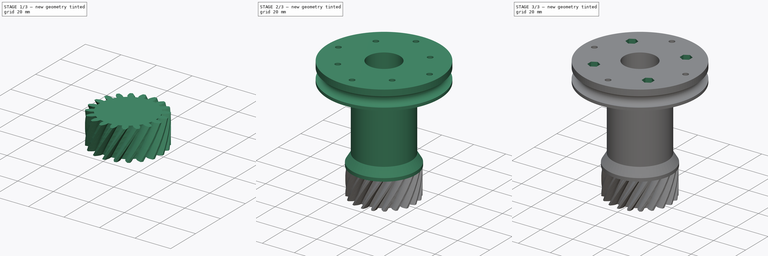
[diagram: build sequence overview — one tinted view per stage of 3, left to right]
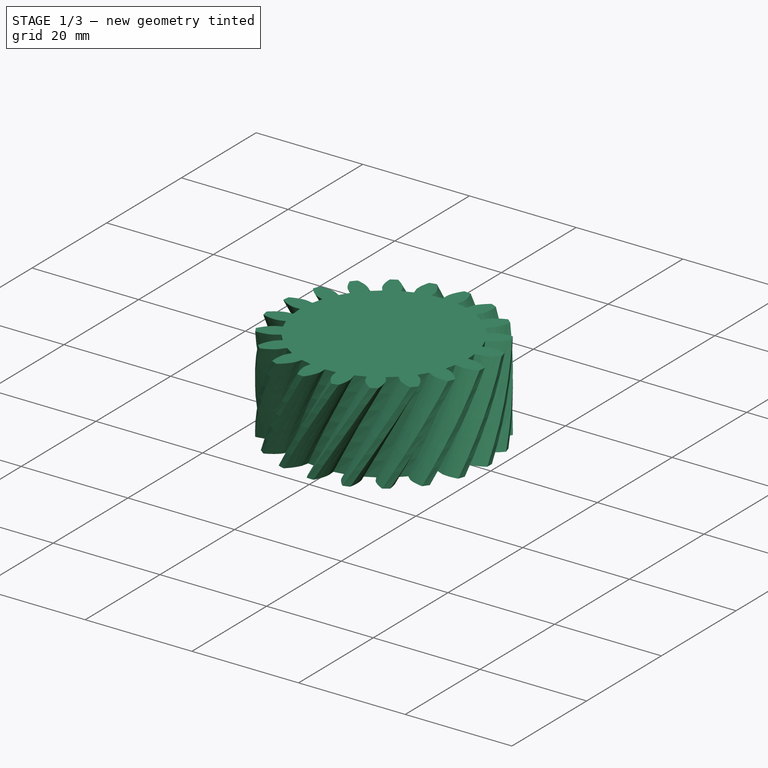
[diagram: stage 1 of 3 — iso view after this stage's code; geometry added in this stage tinted green]
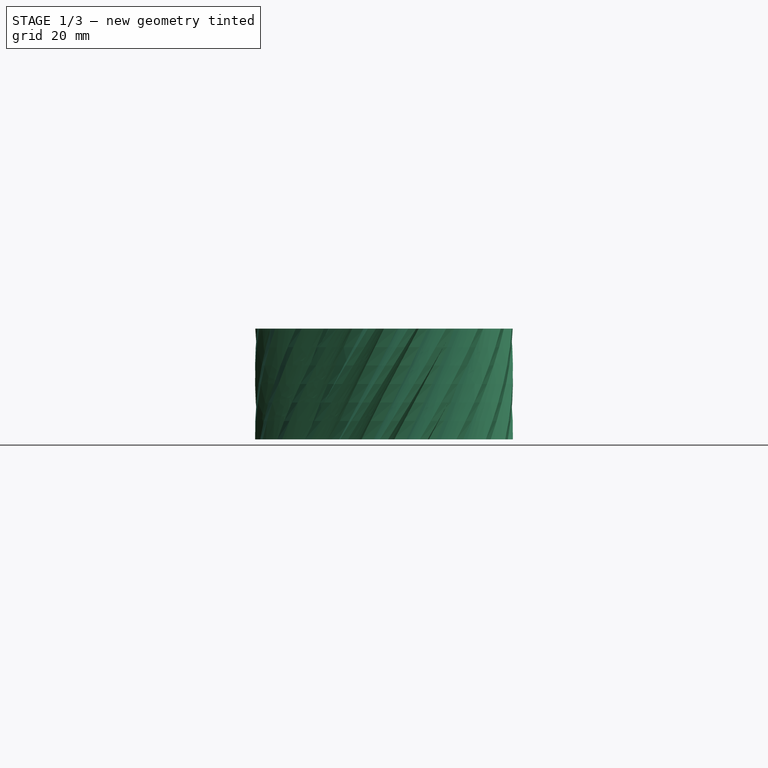
[diagram: stage 1 of 3 — front view after this stage's code; geometry added in this stage tinted green]
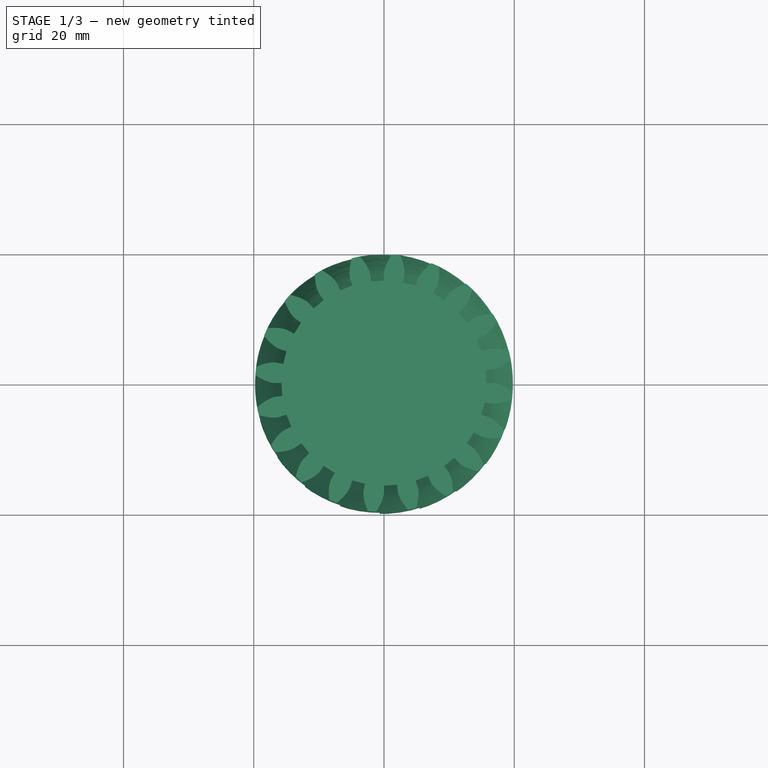
[diagram: stage 1 of 3 — top view after this stage's code; geometry added in this stage tinted green]
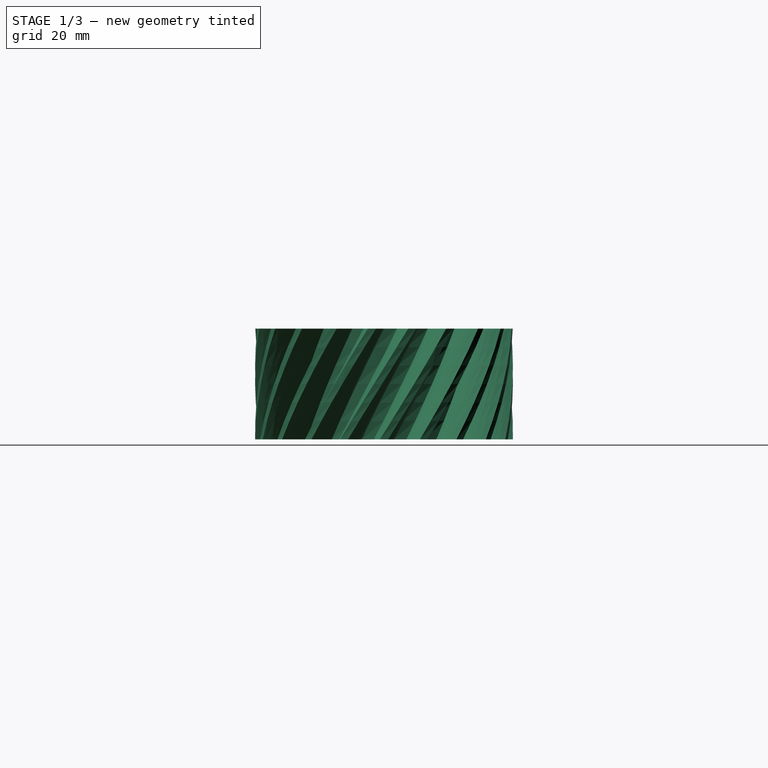
[diagram: stage 1 of 3 — right view after this stage's code; geometry added in this stage tinted green]
FCSTD DOCUMENT  (FreeCAD 0.19R24276 (Git))
Label: Art4TransmissionColumn
License: All rights reserved
LicenseURL: http://en.wikipedia.org/wiki/All_rights_reserved
objects: PartDesign::Line×8, Sketcher::SketchObject×5, PartDesign::Pocket×4, PartDesign::CoordinateSystem×3, Part::FeaturePython×1, PartDesign::FeatureBase×1, Spreadsheet::Sheet×1, PartDesign::Revolution×1, PartDesign::Body×1
note: 29 computed .brp shape members not serialized (recipe doc carries the construction recipe); baked Part::Feature solids carry a one-line shape summary decoded from their .brp

FEATURE [Part::FeaturePython] involutegear  # WARN: FeaturePython — macro-defined, semantics opaque (R4)
  backlash = 0
  beta = 29.5
  clearance = 0.25
  double_helix = false
  dw = 36
  head = 0
  height = 17
  module = 1.8
  numpoints = 6
  pressure_angle = 20
  properties_from_tool = false
  reversed_backlash = false
  shift = 0
  simple = false
  teeth = 20
  transverse_pitch = 5.65487
  undercut = false
  version = 0.0.3
FEATURE [PartDesign::FeatureBase] BaseFeature
  BaseFeature = -> involutegear
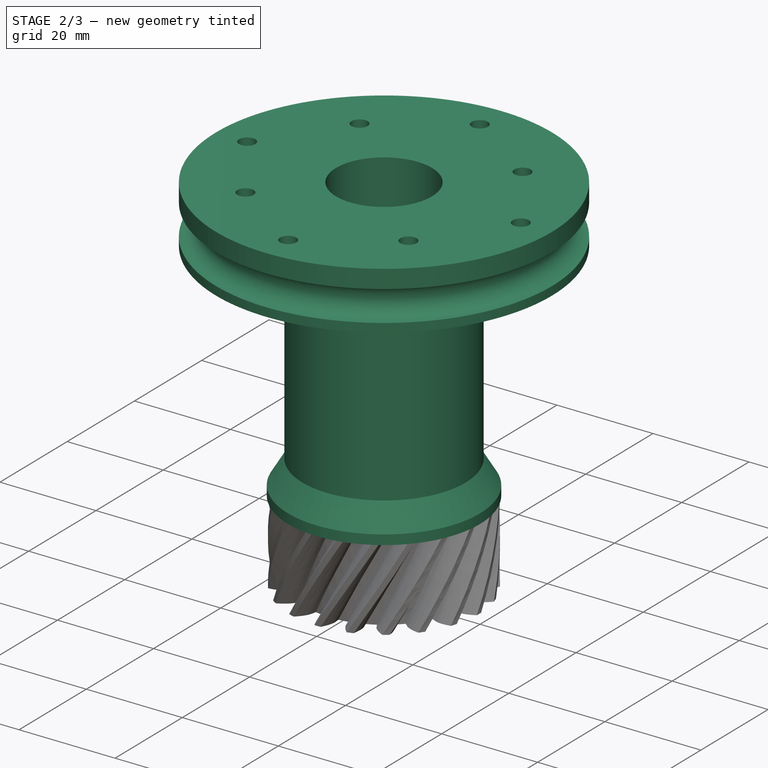
[diagram: stage 2 of 3 — iso view after this stage's code; geometry added in this stage tinted green]
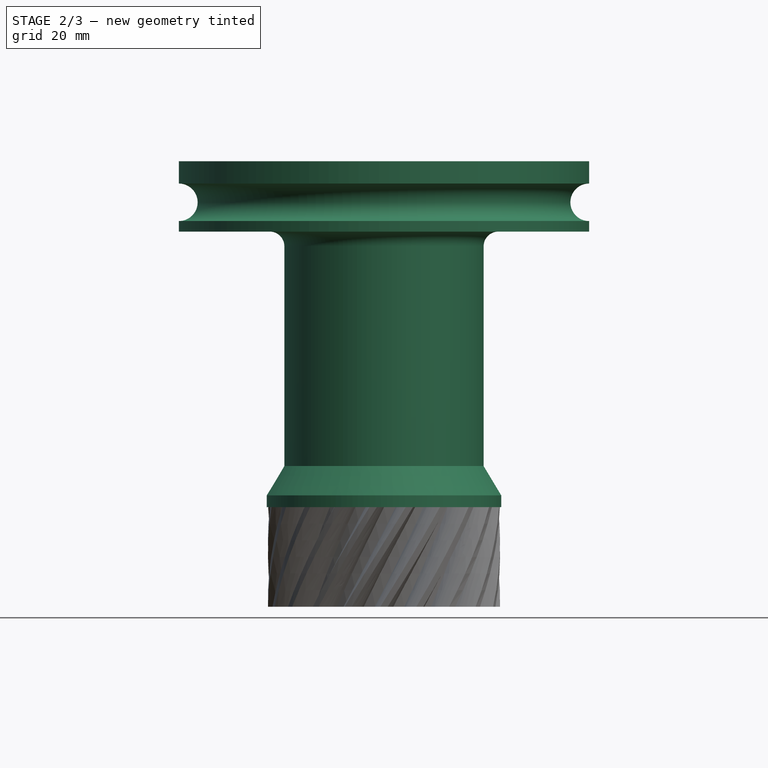
[diagram: stage 2 of 3 — front view after this stage's code; geometry added in this stage tinted green]
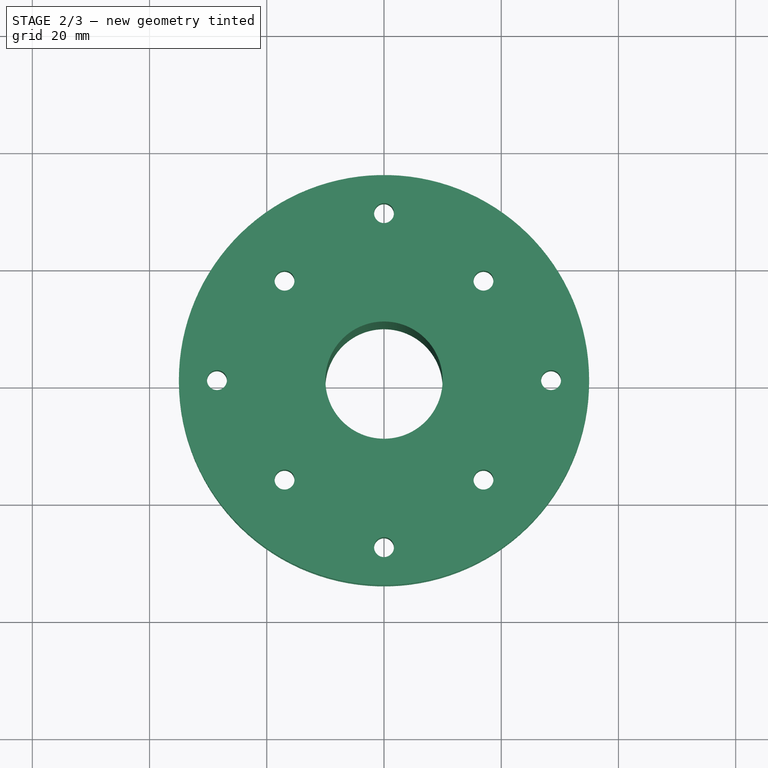
[diagram: stage 2 of 3 — top view after this stage's code; geometry added in this stage tinted green]
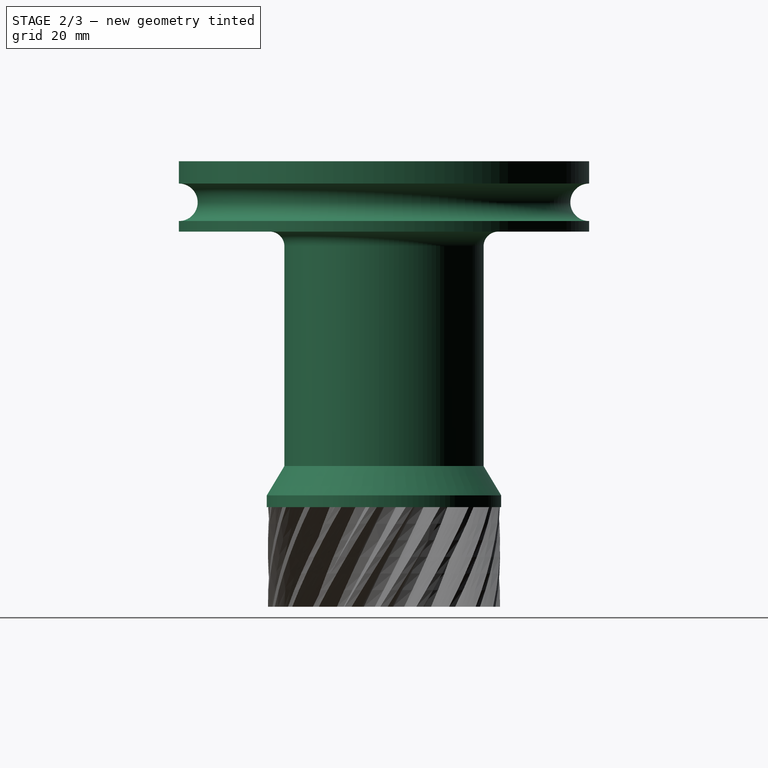
[diagram: stage 2 of 3 — right view after this stage's code; geometry added in this stage tinted green]
FEATURE [Sketcher::SketchObject] Sketch
  FullyConstrained = true
  MapMode = 5
  Placement = pos=(0,0,0) rot=(1,0,0;1.5708rad)
  Support = -> [XZ_Plane]
  expr: Constraints[29] = Spreadsheet.Ball6mmRadius
  sketch-geometry (11):
    g0: LineSegment StartX=0 StartY=17 StartZ=0 EndX=20 EndY=17 EndZ=0
    g1: LineSegment StartX=20 StartY=17 StartZ=0 EndX=20 EndY=19 EndZ=0
    g2: LineSegment StartX=20 StartY=19 StartZ=0 EndX=17 EndY=24 EndZ=0
    g3: LineSegment StartX=17 StartY=24 StartZ=0 EndX=17 EndY=61.5 EndZ=0
    g4: LineSegment StartX=0 StartY=17 StartZ=0 EndX=0 EndY=76 EndZ=0
    g5: LineSegment StartX=0 StartY=76 StartZ=0 EndX=35 EndY=76 EndZ=0
    g6: LineSegment StartX=35 StartY=76 StartZ=0 EndX=35 EndY=72.2 EndZ=0
    g7: ArcOfCircle CenterX=35 CenterY=69 CenterZ=0 NormalX=0 NormalY=0 NormalZ=1 AngleXU=0 Radius=3.2 StartAngle=1.5708 EndAngle=4.71239
    g8: LineSegment StartX=35 StartY=65.8 StartZ=0 EndX=35 EndY=64 EndZ=0
    g9: LineSegment StartX=35 StartY=64 StartZ=0 EndX=19.5 EndY=64 EndZ=0
    g10: ArcOfCircle CenterX=19.5 CenterY=61.5 CenterZ=0 NormalX=0 NormalY=0 NormalZ=1 AngleXU=0 Radius=2.5 StartAngle=1.5708 EndAngle=3.14159
  constraints (33):
    c: PointOnObject(g0,g-2)
    c: Horizontal(g0)
    c: Coincident(g0,g1)
    c: Vertical(g1)
    c: Coincident(g1,g2)
    c: Coincident(g2,g3)
    c: Vertical(g3)
    c: Coincident(g0,g4)
    c: PointOnObject(g4,g-2)
    c: Coincident(g4,g5)
    c: Horizontal(g5)
    c: Coincident(g5,g6)
    c: Vertical(g6)
    c: Coincident(g7,g6)
    c: Coincident(g8,g7)
    c: Vertical(g8)
    c: Coincident(g9,g8)
    c: Horizontal(g9)
    c: Tangent(g10,g3) = 1.5708
    c: Tangent(g10,g9) = -1.5708
    c: PointOnObject(g7,g8)
    c: PointOnObject(g7,g6)
    c: DistanceX(g0,g0) = 20
    c: DistanceY(g1,g1) = 2
    c: DistanceY(g2,g2) = 5
    c: DistanceY(g4,g4) = 59
    c: DistanceX(g5,g5) = 35
    c: DistanceY(g8,g5) = 12
    c: DistanceY(g8,g7) = 5
    c: Radius(g7) = 3.2
    c: DistanceY(g3,g3) = 37.5
    c: DistanceX(g0,g2) = 17
    c: DistanceY(g-1,g0) = 17
FEATURE [Spreadsheet::Sheet] Spreadsheet
  cells = A2=M3BoltBodyRadius; B2(M3BoltBodyRadius)=1.7; A3=M3BoltHeadRadius; B3(M3BoltHeadRadius)=2.95; A4=M3NutCircumradius; B4(M3NutCircumradius)=3.35; A5=M3NutThickness; B5(M3NutThickness)=3; A6=Bearing655ZZBodyRadius; B6(Bearing655ZZBodyRadius)=8.199999999999999; A7=Ball6mmRadius; B7(Ball6mmRadius)=3.2
FEATURE [PartDesign::Revolution] Revolution
  Angle = 360
  Axis = (0,2e-16,1)
  Base = (0,0,0)
  BaseFeature = -> BaseFeature
  Profile = -> Sketch
  ReferenceAxis = -> Sketch [V_Axis]
  Refine = true
  Reversed = true
FEATURE [Sketcher::SketchObject] Sketch001
  FullyConstrained = true
  MapMode = 5
  Placement = pos=(0,1.67e-14,76) rot=(0,0,1;0rad)
  Support = -> [Revolution]
  sketch-geometry (1):
    g0: Circle CenterX=0 CenterY=0 CenterZ=0 NormalX=0 NormalY=0 NormalZ=1 AngleXU=0 Radius=10
  constraints (2):
    c: Coincident(g0,g-1)
    c: Radius(g0) = 10
FEATURE [PartDesign::Pocket] Pocket
  BaseFeature = -> Revolution
  Length = 5
  Length2 = 100
  Profile = -> Sketch001
  Refine = true
  Type = 1
FEATURE [Sketcher::SketchObject] Sketch002
  FullyConstrained = true
  MapMode = 5
  Placement = pos=(0,1.67e-14,76) rot=(0,0,1;0rad)
  Support = -> [Pocket]
  expr: Constraints[8] = Spreadsheet.M3BoltBodyRadius
  sketch-geometry (14):
    g0: Circle CenterX=0 CenterY=0 CenterZ=0 NormalX=0 NormalY=0 NormalZ=1 AngleXU=0 Radius=28.5
    g1: Circle CenterX=0 CenterY=28.5 CenterZ=0 NormalX=0 NormalY=0 NormalZ=1 AngleXU=0 Radius=1.7
    g2: Circle CenterX=28.5 CenterY=0 CenterZ=0 NormalX=0 NormalY=0 NormalZ=1 AngleXU=0 Radius=1.7
    g3: Circle CenterX=0 CenterY=-28.5 CenterZ=0 NormalX=0 NormalY=0 NormalZ=1 AngleXU=0 Radius=1.7
    g4: Circle CenterX=-28.5 CenterY=0 CenterZ=0 NormalX=0 NormalY=0 NormalZ=1 AngleXU=0 Radius=1.7
    g5: Circle CenterX=-16.9706 CenterY=16.9706 CenterZ=0 NormalX=0 NormalY=0 NormalZ=1 AngleXU=0 Radius=1.7
    g6: Circle CenterX=16.9706 CenterY=16.9706 CenterZ=0 NormalX=0 NormalY=0 NormalZ=1 AngleXU=0 Radius=1.7
    g7: Circle CenterX=16.9706 CenterY=-16.9706 CenterZ=0 NormalX=0 NormalY=0 NormalZ=1 AngleXU=0 Radius=1.7
    g8: Circle CenterX=-16.9706 CenterY=-16.9706 CenterZ=0 NormalX=0 NormalY=0 NormalZ=1 AngleXU=0 Radius=1.7
    g9: LineSegment StartX=-16.9706 StartY=16.9706 StartZ=0 EndX=16.9706 EndY=16.9706 EndZ=0
    g10: LineSegment StartX=16.9706 StartY=16.9706 StartZ=0 EndX=16.9706 EndY=-16.9706 EndZ=0
    g11: LineSegment StartX=16.9706 StartY=-16.9706 StartZ=0 EndX=-16.9706 EndY=-16.9706 EndZ=0
    g12: LineSegment StartX=-16.9706 StartY=-16.9706 StartZ=0 EndX=-16.9706 EndY=16.9706 EndZ=0
    g13: Circle CenterX=0 CenterY=0 CenterZ=0 NormalX=0 NormalY=0 NormalZ=1 AngleXU=0 Radius=24
  constraints (36):
    c: Coincident(g0,g-1)
    c: PointOnObject(g1,g-2)
    c: PointOnObject(g2,g-1)
    c: PointOnObject(g3,g-2)
    c: PointOnObject(g4,g-1)
    c: Equal(g4,g1)
    c: Equal(g1,g2)
    c: Equal(g2,g3)
    c: Radius(g3) = 1.7
    c: PointOnObject(g4,g0)
    c: PointOnObject(g1,g0)
    c: PointOnObject(g3,g0)
    c: PointOnObject(g2,g0)
    c: Radius(g0) = 28.5
    c: Equal(g8,g5)
    c: Equal(g5,g6)
    c: Equal(g6,g7)
    c: Equal(g7,g1)
    c: Coincident(g9,g10)
    c: Coincident(g10,g11)
    c: Coincident(g11,g12)
    c: Coincident(g12,g9)
    c: Horizontal(g9)
    c: Horizontal(g11)
    c: Vertical(g10)
    c: Vertical(g12)
    c: Coincident(g9,g5)
    c: Coincident(g10,g7)
    c: Coincident(g8,g11)
    c: Coincident(g9,g6)
    c: Equal(g10,g9)
    c: Coincident(g13,g-1)
    c: PointOnObject(g5,g13)
    c: Radius(g13) = 24
    c: PointOnObject(g7,g13)
    c: PointOnObject(g8,g13)
FEATURE [PartDesign::Pocket] Pocket001
  BaseFeature = -> Pocket
  Length = 5
  Length2 = 100
  Profile = -> Sketch002
  Refine = true
  Type = 1
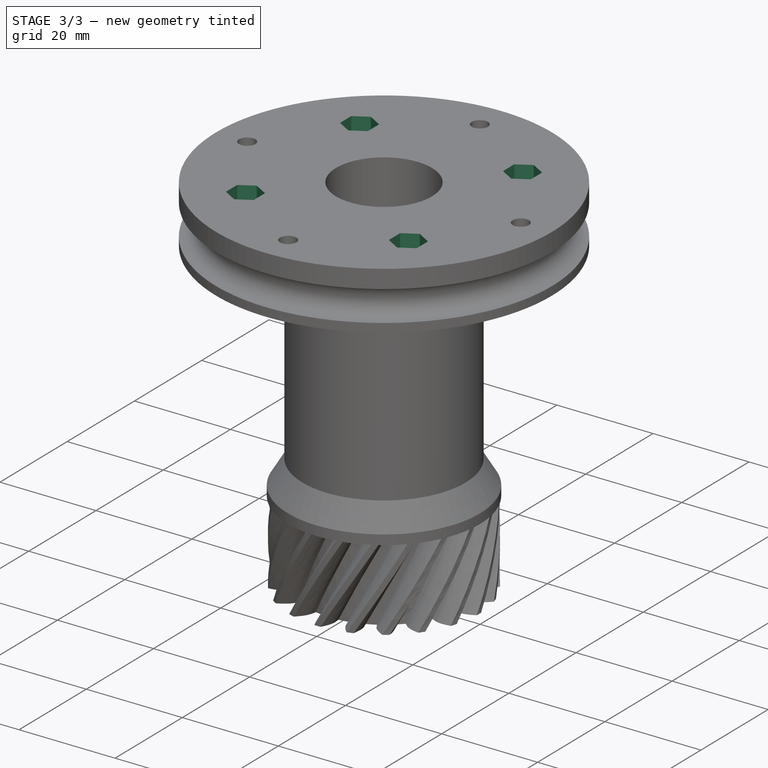
[diagram: stage 3 of 3 — iso view after this stage's code; geometry added in this stage tinted green]
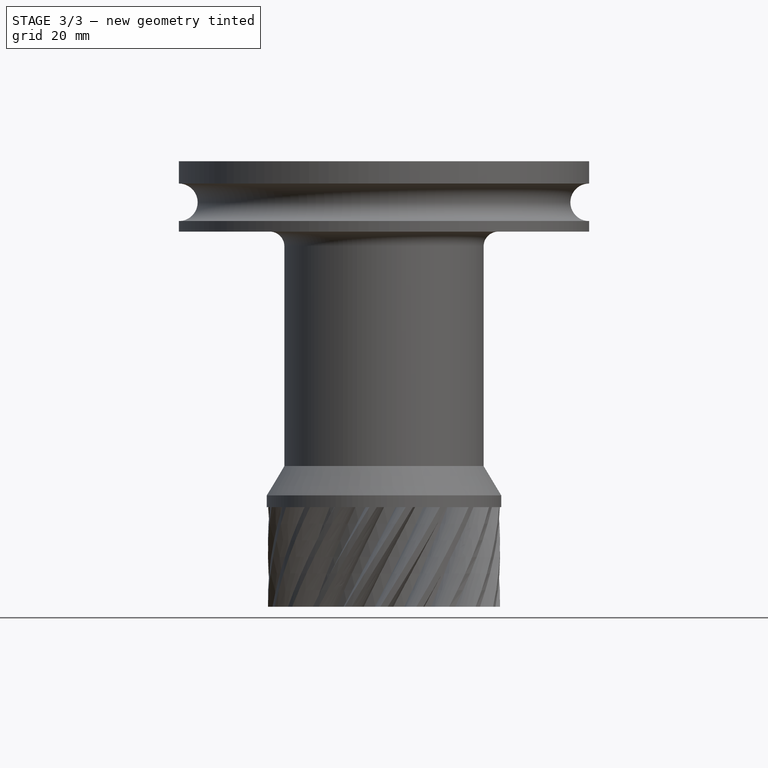
[diagram: stage 3 of 3 — front view after this stage's code; geometry added in this stage tinted green]
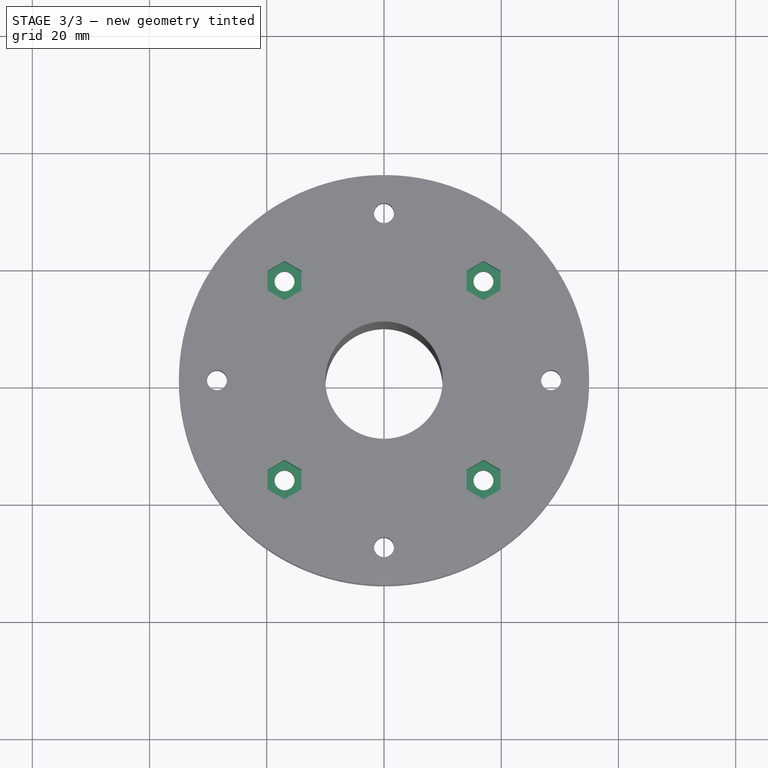
[diagram: stage 3 of 3 — top view after this stage's code; geometry added in this stage tinted green]
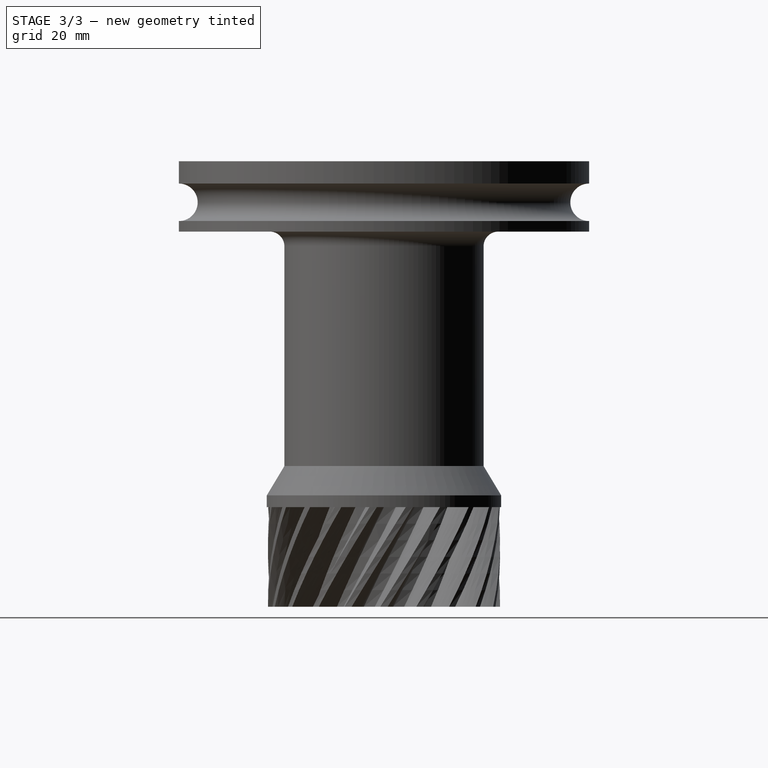
[diagram: stage 3 of 3 — right view after this stage's code; geometry added in this stage tinted green]
FEATURE [Sketcher::SketchObject] Sketch003
  ExternalGeometry = -> [Pocket001]
  FullyConstrained = true
  MapMode = 5
  Placement = pos=(0,1.67e-14,76) rot=(0,0,1;0rad)
  Support = -> [Pocket001]
  expr: Constraints[79] = Spreadsheet.M3NutCircumradius
  sketch-geometry (28):
    g0: LineSegment StartX=16.9706 StartY=13.6206 StartZ=0 EndX=19.8717 EndY=15.2956 EndZ=0
    g1: LineSegment StartX=19.8717 StartY=15.2956 StartZ=0 EndX=19.8717 EndY=18.6456 EndZ=0
    g2: LineSegment StartX=19.8717 StartY=18.6456 StartZ=0 EndX=16.9706 EndY=20.3206 EndZ=0
    g3: LineSegment StartX=16.9706 StartY=20.3206 StartZ=0 EndX=14.0694 EndY=18.6456 EndZ=0
    g4: LineSegment StartX=14.0694 StartY=18.6456 StartZ=0 EndX=14.0694 EndY=15.2956 EndZ=0
    g5: LineSegment StartX=14.0694 StartY=15.2956 StartZ=0 EndX=16.9706 EndY=13.6206 EndZ=0
    g6: Circle CenterX=16.9706 CenterY=16.9706 CenterZ=0 NormalX=0 NormalY=0 NormalZ=1 AngleXU=0 Radius=3.35
    g7: LineSegment StartX=16.9706 StartY=-20.3206 StartZ=0 EndX=19.8717 EndY=-18.6456 EndZ=0
    g8: LineSegment StartX=19.8717 StartY=-18.6456 StartZ=0 EndX=19.8717 EndY=-15.2956 EndZ=0
    g9: LineSegment StartX=19.8717 StartY=-15.2956 StartZ=0 EndX=16.9706 EndY=-13.6206 EndZ=0
    g10: LineSegment StartX=16.9706 StartY=-13.6206 StartZ=0 EndX=14.0694 EndY=-15.2956 EndZ=0
    g11: LineSegment StartX=14.0694 StartY=-15.2956 StartZ=0 EndX=14.0694 EndY=-18.6456 EndZ=0
    g12: LineSegment StartX=14.0694 StartY=-18.6456 StartZ=0 EndX=16.9706 EndY=-20.3206 EndZ=0
    g13: Circle CenterX=16.9706 CenterY=-16.9706 CenterZ=0 NormalX=0 NormalY=0 NormalZ=1 AngleXU=0 Radius=3.35
    g14: LineSegment StartX=-16.9706 StartY=-20.3206 StartZ=0 EndX=-14.0694 EndY=-18.6456 EndZ=0
    g15: LineSegment StartX=-14.0694 StartY=-18.6456 StartZ=0 EndX=-14.0694 EndY=-15.2956 EndZ=0
    g16: LineSegment StartX=-14.0694 StartY=-15.2956 StartZ=0 EndX=-16.9706 EndY=-13.6206 EndZ=0
    g17: LineSegment StartX=-16.9706 StartY=-13.6206 StartZ=0 EndX=-19.8717 EndY=-15.2956 EndZ=0
    g18: LineSegment StartX=-19.8717 StartY=-15.2956 StartZ=0 EndX=-19.8717 EndY=-18.6456 EndZ=0
    g19: LineSegment StartX=-19.8717 StartY=-18.6456 StartZ=0 EndX=-16.9706 EndY=-20.3206 EndZ=0
    g20: Circle CenterX=-16.9706 CenterY=-16.9706 CenterZ=0 NormalX=0 NormalY=0 NormalZ=1 AngleXU=0 Radius=3.35
    g21: LineSegment StartX=-16.9706 StartY=13.6206 StartZ=0 EndX=-14.0694 EndY=15.2956 EndZ=0
    g22: LineSegment StartX=-14.0694 StartY=15.2956 StartZ=0 EndX=-14.0694 EndY=18.6456 EndZ=0
    g23: LineSegment StartX=-14.0694 StartY=18.6456 StartZ=0 EndX=-16.9706 EndY=20.3206 EndZ=0
    g24: LineSegment StartX=-16.9706 StartY=20.3206 StartZ=0 EndX=-19.8717 EndY=18.6456 EndZ=0
    g25: LineSegment StartX=-19.8717 StartY=18.6456 StartZ=0 EndX=-19.8717 EndY=15.2956 EndZ=0
    g26: LineSegment StartX=-19.8717 StartY=15.2956 StartZ=0 EndX=-16.9706 EndY=13.6206 EndZ=0
    g27: Circle CenterX=-16.9706 CenterY=16.9706 CenterZ=0 NormalX=0 NormalY=0 NormalZ=1 AngleXU=0 Radius=3.35
  constraints (64):
    c: Coincident(g0,g1)
    c: Coincident(g1,g2)
    c: Coincident(g2,g3)
    c: Coincident(g3,g4)
    c: Coincident(g4,g5)
    c: Coincident(g5,g0)
    c: Equal(g0, g1-g5) x5
    c: PointOnObject(g0,g6)
    c: PointOnObject(g1,g6)
    c: PointOnObject(g2,g6)
    c: PointOnObject(g3,g6)
    c: PointOnObject(g4,g6)
    c: PointOnObject(g5,g6)
    c: Coincident(g6,g-4)
    c: Coincident(g7,g8)
    c: Coincident(g8,g9)
    c: Coincident(g9,g10)
    c: Coincident(g10,g11)
    c: Coincident(g11,g12)
    c: Coincident(g12,g7)
    c: Equal(g7, g8-g12) x5
    c: PointOnObject(g7,g13)
    c: PointOnObject(g8,g13)
    c: PointOnObject(g9,g13)
    c: PointOnObject(g10,g13)
    c: PointOnObject(g11,g13)
    c: PointOnObject(g12,g13)
    c: Coincident(g13,g-5)
    c: Coincident(g14,g15)
    c: Coincident(g15,g16)
    c: Coincident(g16,g17)
    c: Coincident(g17,g18)
    c: Coincident(g18,g19)
    c: Coincident(g19,g14)
    c: Equal(g14, g15-g19) x5
    c: PointOnObject(g14,g20)
    c: PointOnObject(g15,g20)
    c: PointOnObject(g16,g20)
    c: PointOnObject(g17,g20)
    c: PointOnObject(g18,g20)
    c: PointOnObject(g19,g20)
    c: Coincident(g20,g-6)
    c: Coincident(g21,g22)
    c: Coincident(g22,g23)
    c: Coincident(g23,g24)
    c: Coincident(g24,g25)
    c: Coincident(g25,g26)
    c: Coincident(g26,g21)
    c: Equal(g21, g22-g26) x5
    c: PointOnObject(g21,g27)
    c: PointOnObject(g22,g27)
    c: PointOnObject(g23,g27)
    c: PointOnObject(g24,g27)
    c: PointOnObject(g25,g27)
    c: PointOnObject(g26,g27)
    c: Coincident(g27,g-3)
    c: Vertical(g22)
    c: Vertical(g15)
    c: Vertical(g8)
    c: Vertical(g1)
    c: Equal(g6,g27)
    c: Equal(g27,g20)
    c: Equal(g20,g13)
    c: Radius(g13) = 3.35
FEATURE [PartDesign::Pocket] Pocket002
  BaseFeature = -> Pocket001
  Length = 7
  Length2 = 100
  Profile = -> Sketch003
  Refine = true
  Type = 0
FEATURE [Sketcher::SketchObject] Sketch004
  ExternalGeometry = -> [Pocket002]
  FullyConstrained = true
  MapMode = 5
  Placement = pos=(0,1.41e-14,64) rot=(1,0,0;3.14159rad)
  Support = -> [Pocket002]
  expr: Constraints[5] = Spreadsheet.M3BoltHeadRadius
  sketch-geometry (4):
    g0: Circle CenterX=0 CenterY=28.5 CenterZ=0 NormalX=0 NormalY=0 NormalZ=1 AngleXU=0 Radius=2.95
    g1: Circle CenterX=28.5 CenterY=0 CenterZ=0 NormalX=0 NormalY=0 NormalZ=1 AngleXU=0 Radius=2.95
    g2: Circle CenterX=-28.5 CenterY=0 CenterZ=0 NormalX=0 NormalY=0 NormalZ=1 AngleXU=0 Radius=2.95
    g3: Circle CenterX=0 CenterY=-28.5 CenterZ=0 NormalX=0 NormalY=0 NormalZ=1 AngleXU=0 Radius=2.95
  constraints (8):
    c: Coincident(g0,g-3)
    c: Coincident(g1,g-4)
    c: Coincident(g2,g-5)
    c: Equal(g2,g1)
    c: Equal(g1,g0)
    c: Radius(g0) = 2.95
    c: Coincident(g3,g-6)
    c: Equal(g0,g3)
FEATURE [PartDesign::Pocket] Pocket003
  BaseFeature = -> Pocket002
  Length = 3
  Length2 = 100
  Profile = -> Sketch004
  Refine = true
  Type = 0
FEATURE [PartDesign::CoordinateSystem] LCS_Art4TransmissionColumn
  AttacherType = Attacher::AttachEngine3D
  Placement = pos=(0,0,69) rot=(0,0,1;0rad)
FEATURE [PartDesign::CoordinateSystem] LCS_OptoRing
  AttacherType = Attacher::AttachEngine3D
  MapMode = 45
  Placement = pos=(8e-15,1.33e-14,64) rot=(0,0,1;0rad)
  Support = -> [Pocket003]
FEATURE [PartDesign::CoordinateSystem] LCS_Art4Body
  AttacherType = Attacher::AttachEngine3D
  MapMode = 45
  Placement = pos=(1.06e-14,1.62e-14,76) rot=(0,0,1;0rad)
  Support = -> [Pocket003]
FEATURE [PartDesign::Line] HoleAxis_1
  AttacherType = Attacher::AttachEngineLine
  Length = 4.79083
  MapMode = 19
  Placement = pos=(28.5,1.49e-14,67) rot=(0,0,1;0rad)
  ResizeMode = 1
  Support = -> [Pocket003]
FEATURE [PartDesign::Line] HoleAxis_2
  AttacherType = Attacher::AttachEngineLine
  Length = 4.79083
  MapMode = 19
  Placement = pos=(0,-28.5,67) rot=(0,0,1;0rad)
  ResizeMode = 1
  Support = -> [Pocket003]
FEATURE [PartDesign::Line] HoleAxis_3
  AttacherType = Attacher::AttachEngineLine
  Length = 4.79083
  MapMode = 19
  Placement = pos=(0,28.5,67) rot=(0,0,1;0rad)
  ResizeMode = 1
  Support = -> [Pocket003]
FEATURE [PartDesign::Line] HoleAxis_4
  AttacherType = Attacher::AttachEngineLine
  Length = 4.79083
  MapMode = 19
  Placement = pos=(-28.5,1.49e-14,67) rot=(0,0,1;0rad)
  ResizeMode = 1
  Support = -> [Pocket003]
FEATURE [PartDesign::Line] HoleAxis_5
  AttacherType = Attacher::AttachEngineLine
  Length = 4.79083
  MapMode = 19
  Placement = pos=(16.9706,-16.9706,69) rot=(0,0,1;0rad)
  ResizeMode = 1
  Support = -> [Pocket003]
FEATURE [PartDesign::Line] HoleAxis_6
  AttacherType = Attacher::AttachEngineLine
  Length = 4.79083
  MapMode = 19
  Placement = pos=(-16.9706,-16.9706,69) rot=(0,0,1;0rad)
  ResizeMode = 1
  Support = -> [Pocket003]
FEATURE [PartDesign::Line] HoleAxis_7
  AttacherType = Attacher::AttachEngineLine
  Length = 4.79083
  MapMode = 19
  Placement = pos=(-16.9706,16.9706,69) rot=(0,0,1;0rad)
  ResizeMode = 1
  Support = -> [Pocket003]
FEATURE [PartDesign::Line] HoleAxis_8
  AttacherType = Attacher::AttachEngineLine
  Length = 4.79083
  MapMode = 19
  Placement = pos=(16.9706,16.9706,69) rot=(0,0,1;0rad)
  ResizeMode = 1
  Support = -> [Pocket003]
FEATURE [PartDesign::Body] Body  label="Art4TransmissionColumn"
  BaseFeature = -> involutegear
  Group = -> [BaseFeature,Sketch,Revolution,Sketch001,Pocket,Sketch002,Pocket001,Sketch003,Pocket002,Sketch004,Pocket003,LCS_Art4TransmissionColumn,LCS_OptoRing,LCS_Art4Body,HoleAxis_1,HoleAxis_2,HoleAxis_3,HoleAxis_4,HoleAxis_5,HoleAxis_6,HoleAxis_7,HoleAxis_8]
  Origin = -> Origin
  Tip = -> Pocket003
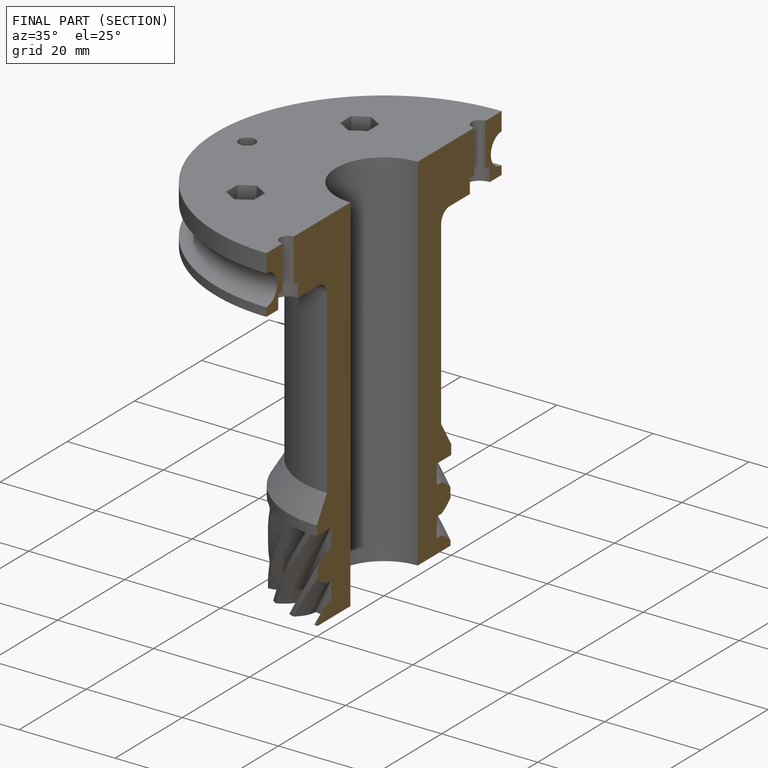
[diagram: finished part — half-section view (interior)]
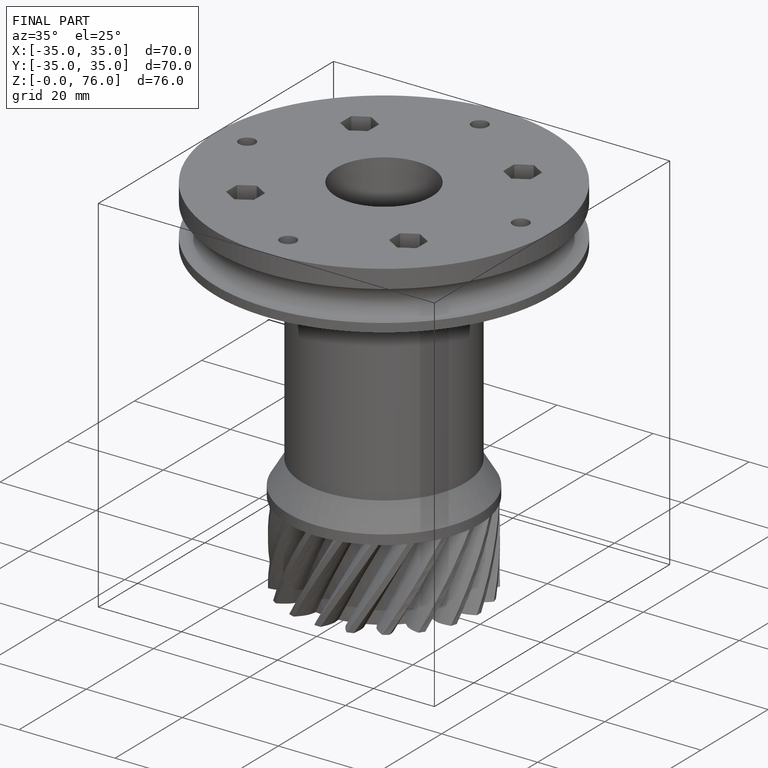
[diagram: finished part — iso view with bounding-box wireframe]
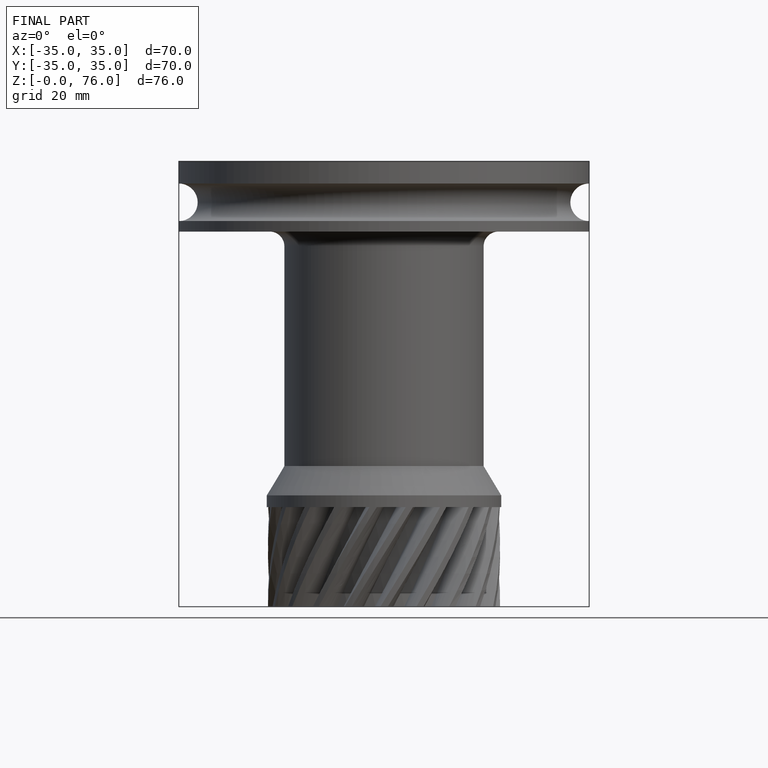
[diagram: finished part — front view with bounding-box wireframe]
